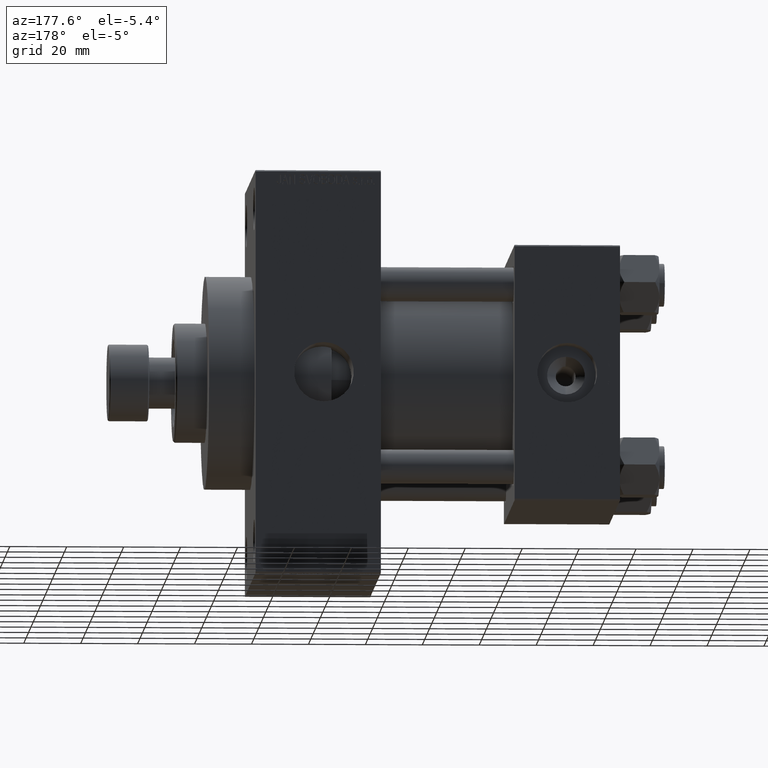
[diagram: clean part render]
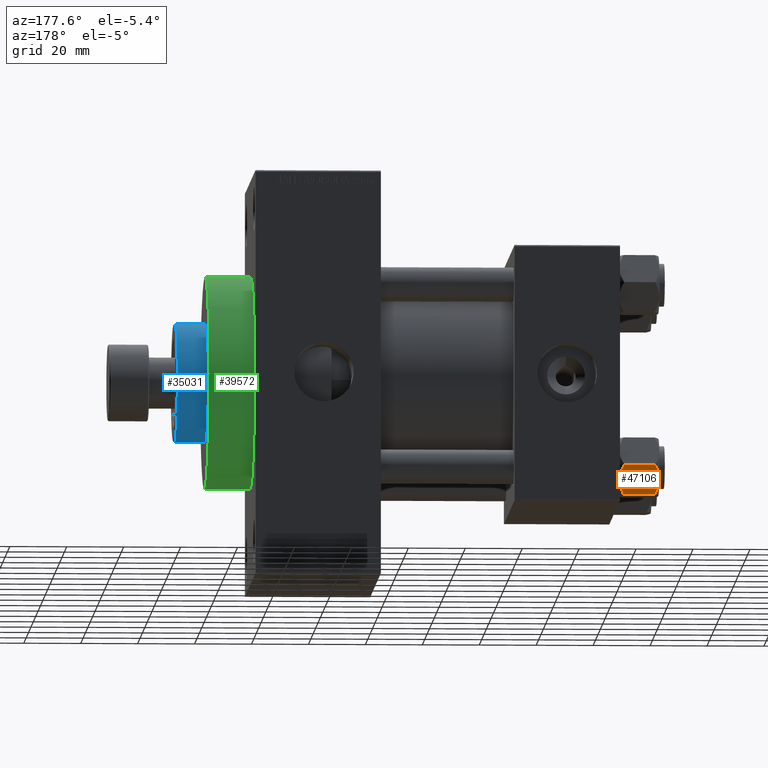
[diagram: same view with three faces highlighted in distinct colors, each labeled with its STEP entity id]
A machine part, auxiliary view with three faces highlighted in distinct colors.
Their STEP definitions:

[orange] entity #47106 — the highlighted planar face has unit normal (0, -0.866, 0.5).
#440 = CARTESIAN_POINT ( 'NONE',  ( -8.969430103550386946, -4.590921729663310025, 6.662949392646161370E-15 ) ) ;
#755 = CARTESIAN_POINT ( 'NONE',  ( -8.715000000000006963, -5.031607595987586556, -14.00000000000000000 ) ) ;
#780 = CARTESIAN_POINT ( 'NONE',  ( -6.265018354709776638, -9.275100283241451748, -1.101766453314952043 ) ) ;
#1183 = VERTEX_POINT ( 'NONE', #21187 ) ;
#2704 = ORIENTED_EDGE ( 'NONE', *, *, #42697, .T. ) ;
#2708 = DIRECTION ( 'NONE',  ( -0.4999999999999994449, 0.8660254037844389297, 0.000000000000000000 ) ) ;
#3468 = CARTESIAN_POINT ( 'NONE',  ( -7.455303369716809847, -7.213466161761383333, -13.69973261901326644 ) ) ;
#3832 = CARTESIAN_POINT ( 'NONE',  ( -9.227666995912100489, -4.143642311704120118, -0.03994118060690279165 ) ) ;
#5200 = DIRECTION ( 'NONE',  ( -0.000000000000000000, -0.000000000000000000, 1.000000000000000000 ) ) ;
#6323 = EDGE_CURVE ( 'NONE', #7428, #41547, #15033, .T. ) ;
#6335 = PLANE ( 'NONE',  #18238 ) ;
#6605 = CARTESIAN_POINT ( 'NONE',  ( -6.731401448974989599, -8.467301068182909063, -13.28585617404753272 ) ) ;
#7086 = CARTESIAN_POINT ( 'NONE',  ( -6.265545725125283738, -9.274186850887380373, -12.89876091710046779 ) ) ;
#7428 = VERTEX_POINT ( 'NONE', #41093 ) ;
#8540 = ORIENTED_EDGE ( 'NONE', *, *, #6323, .F. ) ;
#9299 = CARTESIAN_POINT ( 'NONE',  ( -5.810000000000000497, -10.06321519197517844, -14.00000000000000000 ) ) ;
#10433 = FACE_OUTER_BOUND ( 'NONE', #38437, .T. ) ;
#10501 = B_SPLINE_CURVE_WITH_KNOTS ( 'NONE', 3,
 ( #755, #44874, #12310, #12078, #30621, #34477 ),
 .UNSPECIFIED., .F., .F.,
 ( 4, 2, 4 ),
 ( 0.006022845781655596781, 0.009013049135303641962, 0.01200325248895168714 ),
 .UNSPECIFIED. ) ;
#12078 = CARTESIAN_POINT ( 'NONE',  ( -10.69662495661650148, -1.599332489581326344, -13.28854452935655317 ) ) ;
#12310 = CARTESIAN_POINT ( 'NONE',  ( -9.716999946243698005, -3.296092779912219939, -13.84547602999602667 ) ) ;
#12554 = VERTEX_POINT ( 'NONE', #37930 ) ;
#13211 = B_SPLINE_CURVE_WITH_KNOTS ( 'NONE', 3,
 ( #40224, #18549, #15166, #22396, #18056, #3832, #440, #15397 ),
 .UNSPECIFIED., .F., .F.,
 ( 4, 2, 2, 4 ),
 ( 2.544312114893457383E-07, 0.003011550106433538623, 0.004517197944044561847, 0.006022845781655586372 ),
 .UNSPECIFIED. ) ;
#13231 = CARTESIAN_POINT ( 'NONE',  ( -8.715000000000006963, -5.031607595987586556, -14.00000000000000000 ) ) ;
#14568 = CARTESIAN_POINT ( 'NONE',  ( -8.715000000000006963, -5.031607595987586556, -14.00000000000000000 ) ) ;
#15033 = LINE ( 'NONE', #36946, #45860 ) ;
#15166 = CARTESIAN_POINT ( 'NONE',  ( -10.69859855102500923, -1.595914123792257611, -0.7141438259524607313 ) ) ;
#15397 = CARTESIAN_POINT ( 'NONE',  ( -8.715000000000006963, -5.031607595987586556, 0.000000000000000000 ) ) ;
#18056 = CARTESIAN_POINT ( 'NONE',  ( -9.729165168613654657, -3.275021996682076608, -0.1903979688073365595 ) ) ;
#18178 = CARTESIAN_POINT ( 'NONE',  ( -7.700834831386346835, -6.788193195293090731, -13.80960203119266438 ) ) ;
#18238 = AXIS2_PLACEMENT_3D ( 'NONE', #21044, #47308, #2708 ) ;
#18549 = CARTESIAN_POINT ( 'NONE',  ( -11.16445427487471420, -0.7890283410877914072, -1.101239082899528432 ) ) ;
#18606 = ORIENTED_EDGE ( 'NONE', *, *, #34092, .F. ) ;
#18881 = VECTOR ( 'NONE', #5200, 1000.000000000000000 ) ;
#21044 = CARTESIAN_POINT ( 'NONE',  ( -5.810000000000000497, -10.06321519197517844, -14.00000000000000000 ) ) ;
#21187 = CARTESIAN_POINT ( 'NONE',  ( -5.810000000000000497, -10.06321519197517844, -12.44321519197518633 ) ) ;
#22396 = CARTESIAN_POINT ( 'NONE',  ( -9.974696630283190757, -2.849749030213787115, -0.3002673809867329457 ) ) ;
#22733 = CARTESIAN_POINT ( 'NONE',  ( -7.713000053756304375, -6.767122412062951398, -0.1545239700039803266 ) ) ;
#25627 = CARTESIAN_POINT ( 'NONE',  ( -8.209704053696567527, -5.906805847843720869, 6.159623592433269699E-15 ) ) ;
#25876 = CARTESIAN_POINT ( 'NONE',  ( -8.202333004087902779, -5.919572880271047666, -13.96005881939309745 ) ) ;
#26196 = VERTEX_POINT ( 'NONE', #38650 ) ;
#29002 = CARTESIAN_POINT ( 'NONE',  ( -5.810000000000000497, -10.06321519197517844, -12.44321519197518633 ) ) ;
#30621 = CARTESIAN_POINT ( 'NONE',  ( -11.16498164529022219, -0.7881149087337223635, -12.89823354668505040 ) ) ;
#31125 = VERTEX_POINT ( 'NONE', #13231 ) ;
#31445 = LINE ( 'NONE', #9299, #18881 ) ;
#33144 = ORIENTED_EDGE ( 'NONE', *, *, #35449, .F. ) ;
#33568 = CARTESIAN_POINT ( 'NONE',  ( -6.733375043383495573, -8.463882702393842550, -0.7114554706434480513 ) ) ;
#34092 = EDGE_CURVE ( 'NONE', #12554, #26196, #35702, .T. ) ;
#34477 = CARTESIAN_POINT ( 'NONE',  ( -11.61999999999999922, 6.270720075510426383E-15, -12.44321519197518988 ) ) ;
#35398 = B_SPLINE_CURVE_WITH_KNOTS ( 'NONE', 3,
 ( #29002, #7086, #6605, #3468, #18178, #25876, #43725, #14568 ),
 .UNSPECIFIED., .F., .F.,
 ( 4, 2, 2, 4 ),
 ( 2.544312114906334931E-07, 0.003011550106433543393, 0.004517197944044570521, 0.006022845781655596781 ),
 .UNSPECIFIED. ) ;
#35449 = EDGE_CURVE ( 'NONE', #41547, #12554, #13211, .T. ) ;
#35702 = B_SPLINE_CURVE_WITH_KNOTS ( 'NONE', 3,
 ( #43952, #25627, #22733, #33568, #780, #44194 ),
 .UNSPECIFIED., .F., .F.,
 ( 4, 2, 4 ),
 ( 0.006022845781655586372, 0.009013049135303635023, 0.01200325248895168367 ),
 .UNSPECIFIED. ) ;
#36946 = CARTESIAN_POINT ( 'NONE',  ( -11.61999999999999922, 6.288644352490894150E-15, -14.00000000000000000 ) ) ;
#37930 = CARTESIAN_POINT ( 'NONE',  ( -8.715000000000006963, -5.031607595987586556, 0.000000000000000000 ) ) ;
#38437 = EDGE_LOOP ( 'NONE', ( #44152, #2704, #18606, #33144, #8540, #45021 ) ) ;
#38644 = EDGE_CURVE ( 'NONE', #1183, #31125, #35398, .T. ) ;
#38650 = CARTESIAN_POINT ( 'NONE',  ( -5.810000000000000497, -10.06321519197517844, -1.556784808024813893 ) ) ;
#40224 = CARTESIAN_POINT ( 'NONE',  ( -11.61999999999999922, 6.270720075409452187E-15, -1.556784808024810562 ) ) ;
#41093 = CARTESIAN_POINT ( 'NONE',  ( -11.61999999999999922, 6.270720075510426383E-15, -12.44321519197518988 ) ) ;
#41547 = VERTEX_POINT ( 'NONE', #44106 ) ;
#42697 = EDGE_CURVE ( 'NONE', #1183, #26196, #31445, .T. ) ;
#43725 = CARTESIAN_POINT ( 'NONE',  ( -8.460569896449619876, -5.472293462311856871, -14.00000000000000888 ) ) ;
#43952 = CARTESIAN_POINT ( 'NONE',  ( -8.715000000000006963, -5.031607595987586556, 0.000000000000000000 ) ) ;
#44106 = CARTESIAN_POINT ( 'NONE',  ( -11.61999999999999922, 6.270720075409452187E-15, -1.556784808024810562 ) ) ;
#44152 = ORIENTED_EDGE ( 'NONE', *, *, #38644, .F. ) ;
#44194 = CARTESIAN_POINT ( 'NONE',  ( -5.810000000000000497, -10.06321519197517844, -1.556784808024813893 ) ) ;
#44874 = CARTESIAN_POINT ( 'NONE',  ( -9.220295946303428636, -4.156409344131446026, -14.00000000000000711 ) ) ;
#45021 = ORIENTED_EDGE ( 'NONE', *, *, #45059, .F. ) ;
#45059 = EDGE_CURVE ( 'NONE', #31125, #7428, #10501, .T. ) ;
#45860 = VECTOR ( 'NONE', #47311, 1000.000000000000000 ) ;
#47106 = ADVANCED_FACE ( 'NONE', ( #10433 ), #6335, .F. ) ;
#47308 = DIRECTION ( 'NONE',  ( 0.8660254037844390407, 0.4999999999999995004, 0.000000000000000000 ) ) ;
#47311 = DIRECTION ( 'NONE',  ( -0.000000000000000000, -0.000000000000000000, 1.000000000000000000 ) ) ;

[blue] entity #35031 — the highlighted cylindrical surface (partial cylindrical patch) has radius 21 mm, axis along (-1, 0, 0).
#544 = CARTESIAN_POINT ( 'NONE',  ( 0.000000000000000000, 0.000000000000000000, 53.76000000000001933 ) ) ;
#2182 = VECTOR ( 'NONE', #4271, 1000.000000000000000 ) ;
#3640 = CARTESIAN_POINT ( 'NONE',  ( 21.00000000000000000, 2.571758278209441661E-15, 53.76000000000001933 ) ) ;
#4271 = DIRECTION ( 'NONE',  ( -0.000000000000000000, -0.000000000000000000, -1.000000000000000000 ) ) ;
#4407 = DIRECTION ( 'NONE',  ( 1.000000000000000000, 0.000000000000000000, 0.000000000000000000 ) ) ;
#4873 = DIRECTION ( 'NONE',  ( -1.000000000000000000, 0.000000000000000000, 0.000000000000000000 ) ) ;
#5750 = CARTESIAN_POINT ( 'NONE',  ( -21.00000000000000000, 0.000000000000000000, 53.76000000000001933 ) ) ;
#7506 = CARTESIAN_POINT ( 'NONE',  ( 21.00000000000000000, 2.571758278209441661E-15, 54.26000000000000512 ) ) ;
#8510 = DIRECTION ( 'NONE',  ( -0.000000000000000000, -0.000000000000000000, -1.000000000000000000 ) ) ;
#10178 = AXIS2_PLACEMENT_3D ( 'NONE', #544, #29952, #4407 ) ;
#11420 = VERTEX_POINT ( 'NONE', #30732 ) ;
#11523 = ORIENTED_EDGE ( 'NONE', *, *, #43578, .T. ) ;
#12373 = CARTESIAN_POINT ( 'NONE',  ( -21.00000000000000000, 0.000000000000000000, 54.26000000000000512 ) ) ;
#12986 = VECTOR ( 'NONE', #25089, 1000.000000000000000 ) ;
#13424 = EDGE_CURVE ( 'NONE', #17165, #21381, #30687, .T. ) ;
#14487 = VERTEX_POINT ( 'NONE', #3640 ) ;
#14738 = LINE ( 'NONE', #7506, #12986 ) ;
#17165 = VERTEX_POINT ( 'NONE', #5750 ) ;
#17975 = EDGE_CURVE ( 'NONE', #14487, #11420, #14738, .T. ) ;
#19589 = CYLINDRICAL_SURFACE ( 'NONE', #35660, 21.00000000000000000 ) ;
#20385 = CARTESIAN_POINT ( 'NONE',  ( 0.000000000000000000, 0.000000000000000000, 43.25999999999999801 ) ) ;
#20429 = AXIS2_PLACEMENT_3D ( 'NONE', #20385, #46171, #27839 ) ;
#21381 = VERTEX_POINT ( 'NONE', #28252 ) ;
#25089 = DIRECTION ( 'NONE',  ( -0.000000000000000000, -0.000000000000000000, -1.000000000000000000 ) ) ;
#25290 = EDGE_CURVE ( 'NONE', #14487, #17165, #27838, .T. ) ;
#25718 = ORIENTED_EDGE ( 'NONE', *, *, #25290, .T. ) ;
#27039 = ORIENTED_EDGE ( 'NONE', *, *, #17975, .F. ) ;
#27736 = FACE_OUTER_BOUND ( 'NONE', #39217, .T. ) ;
#27838 = CIRCLE ( 'NONE', #10178, 21.00000000000000000 ) ;
#27839 = DIRECTION ( 'NONE',  ( 1.000000000000000000, 0.000000000000000000, 0.000000000000000000 ) ) ;
#28252 = CARTESIAN_POINT ( 'NONE',  ( -21.00000000000000000, 0.000000000000000000, 43.25999999999999801 ) ) ;
#29952 = DIRECTION ( 'NONE',  ( 0.000000000000000000, 0.000000000000000000, -1.000000000000000000 ) ) ;
#30687 = LINE ( 'NONE', #12373, #2182 ) ;
#30732 = CARTESIAN_POINT ( 'NONE',  ( 21.00000000000000000, 2.571758278209441661E-15, 43.25999999999999801 ) ) ;
#34977 = CARTESIAN_POINT ( 'NONE',  ( 0.000000000000000000, 0.000000000000000000, 54.26000000000000512 ) ) ;
#35031 = ADVANCED_FACE ( 'NONE', ( #27736 ), #19589, .T. ) ;
#35032 = CIRCLE ( 'NONE', #20429, 21.00000000000000000 ) ;
#35294 = ORIENTED_EDGE ( 'NONE', *, *, #13424, .T. ) ;
#35660 = AXIS2_PLACEMENT_3D ( 'NONE', #34977, #8510, #4873 ) ;
#39217 = EDGE_LOOP ( 'NONE', ( #27039, #25718, #35294, #11523 ) ) ;
#43578 = EDGE_CURVE ( 'NONE', #21381, #11420, #35032, .T. ) ;
#46171 = DIRECTION ( 'NONE',  ( 0.000000000000000000, 0.000000000000000000, 1.000000000000000000 ) ) ;

[green] entity #39572 — the highlighted cylindrical surface (partial cylindrical patch) has radius 37.5 mm, axis along (-1, -0, -0).
#310 = VERTEX_POINT ( 'NONE', #25509 ) ;
#4152 = LINE ( 'NONE', #32575, #37365 ) ;
#4597 = DIRECTION ( 'NONE',  ( -1.000000000000000000, -0.000000000000000000, -0.000000000000000000 ) ) ;
#5003 = DIRECTION ( 'NONE',  ( 0.000000000000000000, 0.000000000000000000, 1.000000000000000000 ) ) ;
#8228 = LINE ( 'NONE', #22925, #21510 ) ;
#8666 = AXIS2_PLACEMENT_3D ( 'NONE', #17699, #13589, #38660 ) ;
#8869 = CARTESIAN_POINT ( 'NONE',  ( 144.0000000000000284, 0.000000000000000000, 37.50000000000000711 ) ) ;
#11097 = AXIS2_PLACEMENT_3D ( 'NONE', #45503, #38025, #5003 ) ;
#11631 = EDGE_LOOP ( 'NONE', ( #24739, #17792, #34937, #24917 ) ) ;
#12127 = VERTEX_POINT ( 'NONE', #40899 ) ;
#13589 = DIRECTION ( 'NONE',  ( 1.000000000000000000, 0.000000000000000000, 0.000000000000000000 ) ) ;
#14171 = DIRECTION ( 'NONE',  ( 0.000000000000000000, 0.000000000000000000, -1.000000000000000000 ) ) ;
#14531 = DIRECTION ( 'NONE',  ( -1.000000000000000000, -0.000000000000000000, -0.000000000000000000 ) ) ;
#15470 = EDGE_CURVE ( 'NONE', #31395, #310, #8228, .T. ) ;
#17475 = EDGE_CURVE ( 'NONE', #42053, #310, #44571, .T. ) ;
#17699 = CARTESIAN_POINT ( 'NONE',  ( 144.0000000000000284, 0.000000000000000000, 0.000000000000000000 ) ) ;
#17792 = ORIENTED_EDGE ( 'NONE', *, *, #43179, .T. ) ;
#21510 = VECTOR ( 'NONE', #4597, 1000.000000000000000 ) ;
#22925 = CARTESIAN_POINT ( 'NONE',  ( 144.0000000000000284, 0.000000000000000000, 37.50000000000000711 ) ) ;
#24739 = ORIENTED_EDGE ( 'NONE', *, *, #27070, .F. ) ;
#24917 = ORIENTED_EDGE ( 'NONE', *, *, #15470, .F. ) ;
#25023 = DIRECTION ( 'NONE',  ( 1.000000000000000000, 0.000000000000000000, 0.000000000000000000 ) ) ;
#25509 = CARTESIAN_POINT ( 'NONE',  ( 128.0000000000000000, 0.000000000000000000, 37.50000000000000711 ) ) ;
#27070 = EDGE_CURVE ( 'NONE', #12127, #31395, #37899, .T. ) ;
#31395 = VERTEX_POINT ( 'NONE', #8869 ) ;
#32233 = CARTESIAN_POINT ( 'NONE',  ( 128.0000000000000000, 0.000000000000000000, 0.000000000000000000 ) ) ;
#32575 = CARTESIAN_POINT ( 'NONE',  ( 144.0000000000000284, 4.592425496802575156E-15, -37.50000000000000711 ) ) ;
#34937 = ORIENTED_EDGE ( 'NONE', *, *, #17475, .T. ) ;
#36075 = AXIS2_PLACEMENT_3D ( 'NONE', #32233, #25023, #14171 ) ;
#37365 = VECTOR ( 'NONE', #14531, 1000.000000000000000 ) ;
#37899 = CIRCLE ( 'NONE', #8666, 37.50000000000000711 ) ;
#38025 = DIRECTION ( 'NONE',  ( -1.000000000000000000, -0.000000000000000000, -0.000000000000000000 ) ) ;
#38496 = FACE_OUTER_BOUND ( 'NONE', #11631, .T. ) ;
#38660 = DIRECTION ( 'NONE',  ( 0.000000000000000000, 0.000000000000000000, -1.000000000000000000 ) ) ;
#39572 = ADVANCED_FACE ( 'NONE', ( #38496 ), #45734, .T. ) ;
#40899 = CARTESIAN_POINT ( 'NONE',  ( 144.0000000000000284, 4.592425496802575156E-15, -37.50000000000000711 ) ) ;
#42053 = VERTEX_POINT ( 'NONE', #46389 ) ;
#43179 = EDGE_CURVE ( 'NONE', #12127, #42053, #4152, .T. ) ;
#44571 = CIRCLE ( 'NONE', #36075, 37.50000000000000711 ) ;
#45503 = CARTESIAN_POINT ( 'NONE',  ( 144.0000000000000284, 0.000000000000000000, 0.000000000000000000 ) ) ;
#45734 = CYLINDRICAL_SURFACE ( 'NONE', #11097, 37.50000000000000711 ) ;
#46389 = CARTESIAN_POINT ( 'NONE',  ( 128.0000000000000000, 4.592425496802575156E-15, -37.50000000000000711 ) ) ;